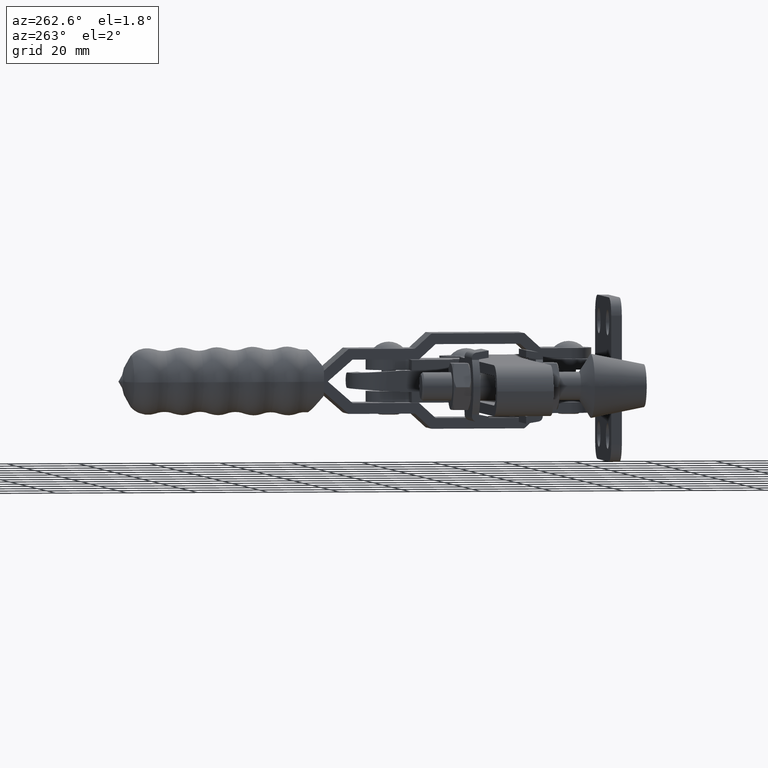
[diagram: clean part render]
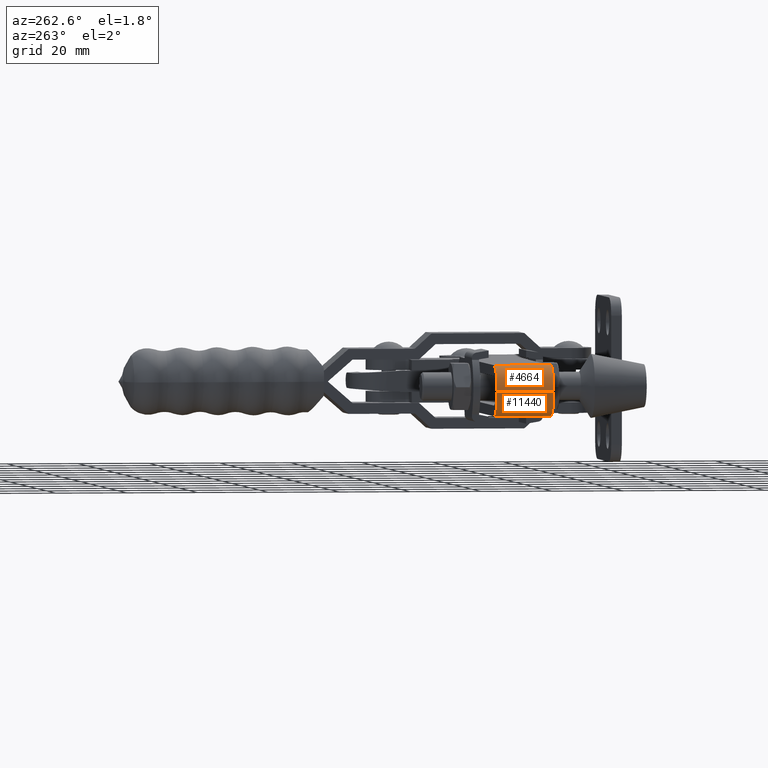
[diagram: same view with one multi-face feature highlighted, each face labeled with its STEP entity id]
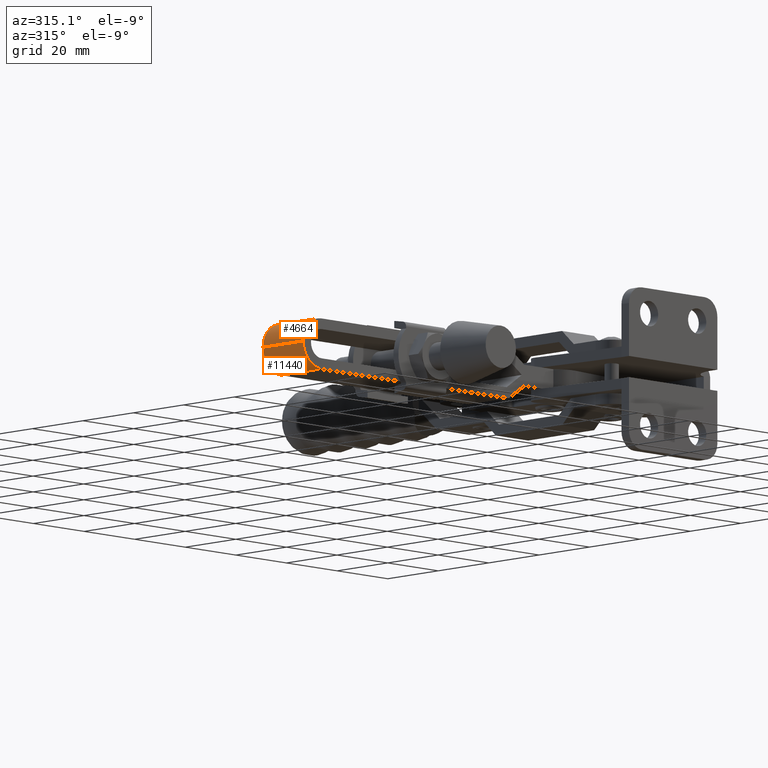
[diagram: same view with one multi-face feature highlighted, each face labeled with its STEP entity id]
A machine part, auxiliary view. The highlighted faces form ONE feature: a constant-radius fillet chain: 2 tangent blend faces with common blend radius 7.15 mm. The faces share edges in the B-rep.
A second angle (auxiliary view) of the same feature is appended — it is thin or edge-on in the first view.
Their STEP definitions:
[1] entity #4664 (Cylinder):
#223 = AXIS2_PLACEMENT_3D ( 'NONE', #6159, #1478, #1564 ) ;
#399 = VERTEX_POINT ( 'NONE', #1528 ) ;
#563 = AXIS2_PLACEMENT_3D ( 'NONE', #8531, #10405, #5755 ) ;
#670 = CYLINDRICAL_SURFACE ( 'NONE', #223, 7.150000000000044800 ) ;
#1299 = CARTESIAN_POINT ( 'NONE',  ( -136.3000000000000400, -4.930380657631323800E-029, 21.00000000000000000 ) ) ;
#1424 = CIRCLE ( 'NONE', #4808, 7.150000000000044800 ) ;
#1478 = DIRECTION ( 'NONE',  ( -0.0000000000000000000, -0.0000000000000000000, -1.000000000000000000 ) ) ;
#1528 = CARTESIAN_POINT ( 'NONE',  ( -136.3000000000000400, -4.930380657631328300E-029, 2.499999999999767300 ) ) ;
#1564 = DIRECTION ( 'NONE',  ( -1.000000000000000000, 0.0000000000000000000, 0.0000000000000000000 ) ) ;
#1589 = CARTESIAN_POINT ( 'NONE',  ( -129.1499999999999800, 7.150000000000031400, 21.00000000000000000 ) ) ;
#1731 = CARTESIAN_POINT ( 'NONE',  ( -129.1499999999999800, 7.150000000000223300, 18.50000000000023400 ) ) ;
#2157 = DIRECTION ( 'NONE',  ( 1.817064958632037800E-015, -2.709667366437689500E-030, -1.000000000000000000 ) ) ;
#2234 = CIRCLE ( 'NONE', #563, 7.150000000000031400 ) ;
#2471 = DIRECTION ( 'NONE',  ( -0.0000000000000000000, -0.0000000000000000000, -1.000000000000000000 ) ) ;
#3405 = FACE_OUTER_BOUND ( 'NONE', #7853, .T. ) ;
#4323 = ORIENTED_EDGE ( 'NONE', *, *, #8807, .F. ) ;
#4664 = ADVANCED_FACE ( 'NONE', ( #3405 ), #670, .T. ) ;
#4808 = AXIS2_PLACEMENT_3D ( 'NONE', #7731, #2157, #8659 ) ;
#5067 = EDGE_CURVE ( 'NONE', #6684, #9013, #2234, .T. ) ;
#5265 = CARTESIAN_POINT ( 'NONE',  ( -136.3000000000000400, -4.930380657631330500E-029, 18.50000000000025200 ) ) ;
#5359 = ORIENTED_EDGE ( 'NONE', *, *, #11175, .T. ) ;
#5755 = DIRECTION ( 'NONE',  ( 1.000000000000000000, 0.0000000000000000000, -2.426186679687831500E-015 ) ) ;
#6159 = CARTESIAN_POINT ( 'NONE',  ( -129.1499999999999800, -4.930380657631323800E-029, 21.00000000000000000 ) ) ;
#6332 = LINE ( 'NONE', #1589, #10973 ) ;
#6684 = VERTEX_POINT ( 'NONE', #1731 ) ;
#6849 = DIRECTION ( 'NONE',  ( -0.0000000000000000000, -0.0000000000000000000, -1.000000000000000000 ) ) ;
#7247 = ORIENTED_EDGE ( 'NONE', *, *, #9873, .F. ) ;
#7486 = VECTOR ( 'NONE', #6849, 1000.000000000000000 ) ;
#7731 = CARTESIAN_POINT ( 'NONE',  ( -129.1499999999999800, -4.930380657631323800E-029, 2.499999999999780200 ) ) ;
#7810 = CARTESIAN_POINT ( 'NONE',  ( -129.1499999999999800, 7.150000000000223300, 2.499999999999780200 ) ) ;
#7853 = EDGE_LOOP ( 'NONE', ( #7247, #9122, #5359, #4323 ) ) ;
#8531 = CARTESIAN_POINT ( 'NONE',  ( -129.1499999999999800, -4.930380657631323800E-029, 18.50000000000023400 ) ) ;
#8659 = DIRECTION ( 'NONE',  ( -1.000000000000000000, 0.0000000000000000000, -1.819640009765870100E-015 ) ) ;
#8807 = EDGE_CURVE ( 'NONE', #399, #10986, #1424, .T. ) ;
#9013 = VERTEX_POINT ( 'NONE', #5265 ) ;
#9122 = ORIENTED_EDGE ( 'NONE', *, *, #5067, .F. ) ;
#9873 = EDGE_CURVE ( 'NONE', #9013, #399, #10253, .T. ) ;
#10253 = LINE ( 'NONE', #1299, #7486 ) ;
#10405 = DIRECTION ( 'NONE',  ( 2.387640911825673500E-015, -3.560529099860152600E-030, 1.000000000000000000 ) ) ;
#10973 = VECTOR ( 'NONE', #2471, 1000.000000000000000 ) ;
#10986 = VERTEX_POINT ( 'NONE', #7810 ) ;
#11175 = EDGE_CURVE ( 'NONE', #6684, #10986, #6332, .T. ) ;
[2] entity #11440 (Cylinder):
#198 = AXIS2_PLACEMENT_3D ( 'NONE', #4711, #11215, #5657 ) ;
#399 = VERTEX_POINT ( 'NONE', #1528 ) ;
#683 = VERTEX_POINT ( 'NONE', #9018 ) ;
#1031 = CARTESIAN_POINT ( 'NONE',  ( -129.1499999999999800, -4.930380657631323800E-029, 21.00000000000000000 ) ) ;
#1299 = CARTESIAN_POINT ( 'NONE',  ( -136.3000000000000400, -4.930380657631323800E-029, 21.00000000000000000 ) ) ;
#1528 = CARTESIAN_POINT ( 'NONE',  ( -136.3000000000000400, -4.930380657631328300E-029, 2.499999999999767300 ) ) ;
#1857 = EDGE_LOOP ( 'NONE', ( #10288, #5953, #7678, #3175 ) ) ;
#3175 = ORIENTED_EDGE ( 'NONE', *, *, #10036, .F. ) ;
#4005 = VECTOR ( 'NONE', #6185, 1000.000000000000000 ) ;
#4082 = EDGE_CURVE ( 'NONE', #8321, #399, #4429, .T. ) ;
#4429 = CIRCLE ( 'NONE', #9801, 7.150000000000044800 ) ;
#4711 = CARTESIAN_POINT ( 'NONE',  ( -129.1499999999999800, -4.930380657631323800E-029, 18.50000000000023400 ) ) ;
#5265 = CARTESIAN_POINT ( 'NONE',  ( -136.3000000000000400, -4.930380657631330500E-029, 18.50000000000025200 ) ) ;
#5657 = DIRECTION ( 'NONE',  ( 1.000000000000000000, 0.0000000000000000000, -2.426186679687831500E-015 ) ) ;
#5953 = ORIENTED_EDGE ( 'NONE', *, *, #9873, .T. ) ;
#6185 = DIRECTION ( 'NONE',  ( -0.0000000000000000000, -0.0000000000000000000, -1.000000000000000000 ) ) ;
#6228 = DIRECTION ( 'NONE',  ( -1.000000000000000000, 0.0000000000000000000, -1.819640009765870100E-015 ) ) ;
#6483 = LINE ( 'NONE', #7141, #4005 ) ;
#6849 = DIRECTION ( 'NONE',  ( -0.0000000000000000000, -0.0000000000000000000, -1.000000000000000000 ) ) ;
#7141 = CARTESIAN_POINT ( 'NONE',  ( -129.1499999999999800, -7.150000000000031400, 21.00000000000000000 ) ) ;
#7176 = DIRECTION ( 'NONE',  ( 1.817064958632037800E-015, -2.709667366437689500E-030, -1.000000000000000000 ) ) ;
#7486 = VECTOR ( 'NONE', #6849, 1000.000000000000000 ) ;
#7678 = ORIENTED_EDGE ( 'NONE', *, *, #4082, .F. ) ;
#8321 = VERTEX_POINT ( 'NONE', #11603 ) ;
#9013 = VERTEX_POINT ( 'NONE', #5265 ) ;
#9018 = CARTESIAN_POINT ( 'NONE',  ( -129.1499999999999800, -7.150000000000032300, 18.50000000000023400 ) ) ;
#9106 = CYLINDRICAL_SURFACE ( 'NONE', #11482, 7.150000000000044800 ) ;
#9350 = DIRECTION ( 'NONE',  ( -1.000000000000000000, 0.0000000000000000000, 0.0000000000000000000 ) ) ;
#9801 = AXIS2_PLACEMENT_3D ( 'NONE', #10850, #7176, #6228 ) ;
#9873 = EDGE_CURVE ( 'NONE', #9013, #399, #10253, .T. ) ;
#10036 = EDGE_CURVE ( 'NONE', #683, #8321, #6483, .T. ) ;
#10253 = LINE ( 'NONE', #1299, #7486 ) ;
#10281 = DIRECTION ( 'NONE',  ( -0.0000000000000000000, -0.0000000000000000000, -1.000000000000000000 ) ) ;
#10288 = ORIENTED_EDGE ( 'NONE', *, *, #10338, .F. ) ;
#10338 = EDGE_CURVE ( 'NONE', #9013, #683, #11589, .T. ) ;
#10850 = CARTESIAN_POINT ( 'NONE',  ( -129.1499999999999800, -4.930380657631323800E-029, 2.499999999999780200 ) ) ;
#11215 = DIRECTION ( 'NONE',  ( 2.387640911825673500E-015, -3.560529099860152600E-030, 1.000000000000000000 ) ) ;
#11440 = ADVANCED_FACE ( 'NONE', ( #11839 ), #9106, .T. ) ;
#11482 = AXIS2_PLACEMENT_3D ( 'NONE', #1031, #10281, #9350 ) ;
#11589 = CIRCLE ( 'NONE', #198, 7.150000000000031400 ) ;
#11603 = CARTESIAN_POINT ( 'NONE',  ( -129.1499999999999800, -7.150000000000032300, 2.499999999999780200 ) ) ;
#11839 = FACE_OUTER_BOUND ( 'NONE', #1857, .T. ) ;